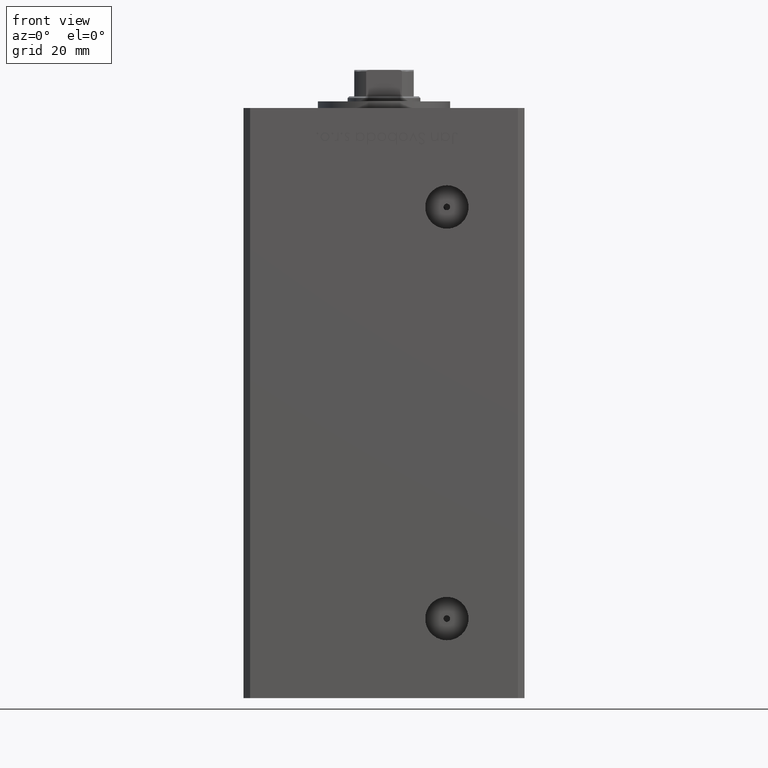
[diagram: clean part render]
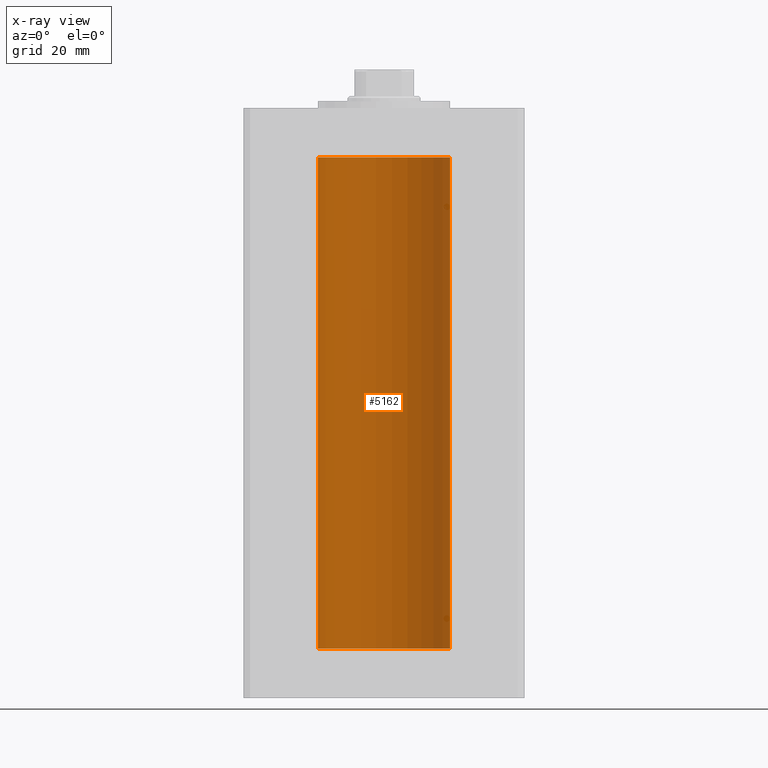
[diagram: x-ray — body ghosted, one internal face saturated and labeled with its STEP entity id]
A machine part, front view, then the same camera in x-ray: the body is ghosted and one INTERNAL B-rep face — a face not visible from any outside direction — is saturated and labeled: STEP entity #5162.
In plain terms, the highlighted cylindrical surface (partial cylindrical patch) has radius 20 mm, axis along (-0, -0, -1).
Its self-contained STEP definition (entity closure, byte-faithful):
#4865 = ORIENTED_EDGE ( 'NONE', *, *, #41584, .T. ) ;
#5162 = ADVANCED_FACE ( 'NONE', ( #39567 ), #40337, .F. ) ;
#5483 = CARTESIAN_POINT ( 'NONE',  ( -20.00000000000000000, 0.000000000000000000, 0.000000000000000000 ) ) ;
#6682 = CIRCLE ( 'NONE', #31993, 20.00000000000000000 ) ;
#8697 = CARTESIAN_POINT ( 'NONE',  ( 20.00000000000000000, 2.449293598294706513E-15, 0.000000000000000000 ) ) ;
#10388 = CARTESIAN_POINT ( 'NONE',  ( -20.00000000000000000, 0.000000000000000000, 148.5000000000000000 ) ) ;
#11240 = CARTESIAN_POINT ( 'NONE',  ( 0.000000000000000000, 0.000000000000000000, 148.5000000000000000 ) ) ;
#11840 = DIRECTION ( 'NONE',  ( -0.000000000000000000, -0.000000000000000000, -1.000000000000000000 ) ) ;
#14143 = CARTESIAN_POINT ( 'NONE',  ( -20.00000000000000000, 0.000000000000000000, 148.5000000000000000 ) ) ;
#15985 = DIRECTION ( 'NONE',  ( 1.000000000000000000, 0.000000000000000000, 0.000000000000000000 ) ) ;
#18248 = AXIS2_PLACEMENT_3D ( 'NONE', #25660, #18512, #41743 ) ;
#18512 = DIRECTION ( 'NONE',  ( -0.000000000000000000, 0.000000000000000000, 1.000000000000000000 ) ) ;
#19441 = EDGE_CURVE ( 'NONE', #27440, #40976, #44393, .T. ) ;
#20281 = CARTESIAN_POINT ( 'NONE',  ( 20.00000000000000000, 2.449293598294706513E-15, 148.5000000000000000 ) ) ;
#22050 = ORIENTED_EDGE ( 'NONE', *, *, #33856, .F. ) ;
#23545 = AXIS2_PLACEMENT_3D ( 'NONE', #47991, #11840, #27956 ) ;
#24233 = VERTEX_POINT ( 'NONE', #14143 ) ;
#25660 = CARTESIAN_POINT ( 'NONE',  ( 0.000000000000000000, 0.000000000000000000, 0.000000000000000000 ) ) ;
#27440 = VERTEX_POINT ( 'NONE', #20281 ) ;
#27548 = CIRCLE ( 'NONE', #18248, 20.00000000000000000 ) ;
#27956 = DIRECTION ( 'NONE',  ( -1.000000000000000000, 0.000000000000000000, 0.000000000000000000 ) ) ;
#28005 = DIRECTION ( 'NONE',  ( -0.000000000000000000, -0.000000000000000000, -1.000000000000000000 ) ) ;
#31993 = AXIS2_PLACEMENT_3D ( 'NONE', #11240, #39224, #15985 ) ;
#33420 = VERTEX_POINT ( 'NONE', #5483 ) ;
#33856 = EDGE_CURVE ( 'NONE', #40976, #33420, #27548, .T. ) ;
#35924 = LINE ( 'NONE', #10388, #48854 ) ;
#39224 = DIRECTION ( 'NONE',  ( -0.000000000000000000, 0.000000000000000000, 1.000000000000000000 ) ) ;
#39567 = FACE_OUTER_BOUND ( 'NONE', #50849, .T. ) ;
#40337 = CYLINDRICAL_SURFACE ( 'NONE', #23545, 20.00000000000000000 ) ;
#40961 = DIRECTION ( 'NONE',  ( -0.000000000000000000, -0.000000000000000000, -1.000000000000000000 ) ) ;
#40976 = VERTEX_POINT ( 'NONE', #8697 ) ;
#41584 = EDGE_CURVE ( 'NONE', #27440, #24233, #6682, .T. ) ;
#41743 = DIRECTION ( 'NONE',  ( 1.000000000000000000, 0.000000000000000000, 0.000000000000000000 ) ) ;
#42603 = EDGE_CURVE ( 'NONE', #24233, #33420, #35924, .T. ) ;
#44393 = LINE ( 'NONE', #49400, #49194 ) ;
#45863 = ORIENTED_EDGE ( 'NONE', *, *, #19441, .F. ) ;
#47011 = ORIENTED_EDGE ( 'NONE', *, *, #42603, .T. ) ;
#47991 = CARTESIAN_POINT ( 'NONE',  ( 0.000000000000000000, 0.000000000000000000, 148.5000000000000000 ) ) ;
#48854 = VECTOR ( 'NONE', #28005, 1000.000000000000000 ) ;
#49194 = VECTOR ( 'NONE', #40961, 1000.000000000000000 ) ;
#49400 = CARTESIAN_POINT ( 'NONE',  ( 20.00000000000000000, 2.449293598294706513E-15, 148.5000000000000000 ) ) ;
#50849 = EDGE_LOOP ( 'NONE', ( #45863, #4865, #47011, #22050 ) ) ;